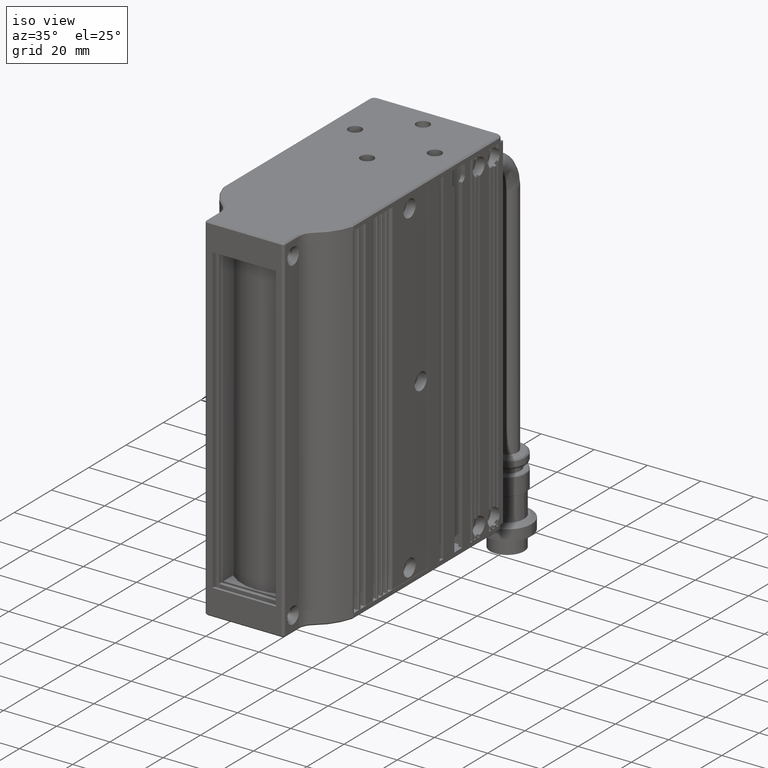
[diagram: clean part render]
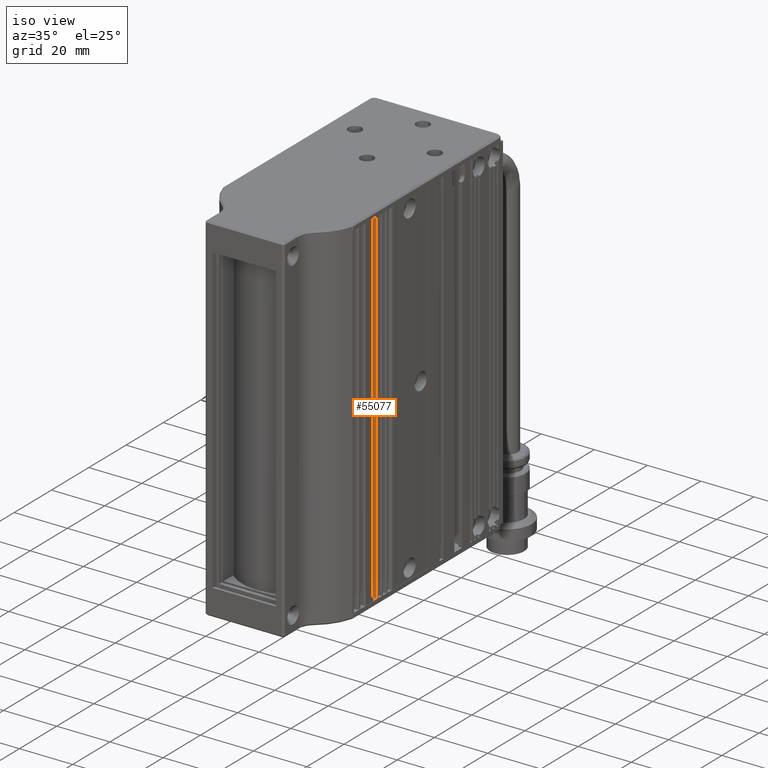
[diagram: same view with one face highlighted and labeled with its STEP entity id]
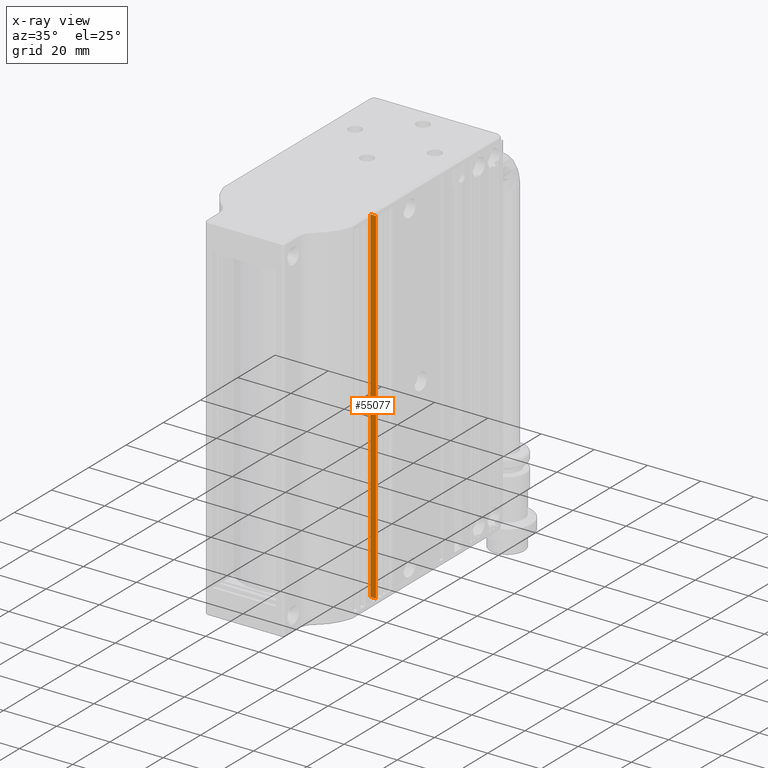
[diagram: x-ray of the same camera — body ghosted, the highlighted face saturated]
A machine part, iso view. The second image highlights one B-rep face of the part: STEP entity #55077.
The next image is the same camera in x-ray: the body ghosted, the highlighted face saturated — about 0% of this face is hidden behind the body in this view.
In plain terms, the highlighted planar face has unit normal (0, 1, -0).
Its self-contained STEP definition (entity closure, byte-faithful):
#56 = ORIENTED_EDGE ( 'NONE', *, *, #65915, .F. ) ;
#3409 = DIRECTION ( 'NONE',  ( 0.0000000000000000000, 1.000000000000000000, -1.665334536937734300E-016 ) ) ;
#3748 = CARTESIAN_POINT ( 'NONE',  ( -13.56201180637544800, -23.49547579693033900, -65.00000000000000000 ) ) ;
#10833 = DIRECTION ( 'NONE',  ( -1.000000000000000000, 0.0000000000000000000, 0.0000000000000000000 ) ) ;
#12434 = ORIENTED_EDGE ( 'NONE', *, *, #51476, .T. ) ;
#12963 = CARTESIAN_POINT ( 'NONE',  ( -15.66201180637662900, -23.49547579693031800, 65.00000000000000000 ) ) ;
#13303 = VECTOR ( 'NONE', #46753, 1000.000000000000000 ) ;
#13603 = CARTESIAN_POINT ( 'NONE',  ( -15.66201180637663300, -23.49547579693034300, -65.00000000000000000 ) ) ;
#15010 = CARTESIAN_POINT ( 'NONE',  ( -13.56201180637544800, -23.49547579693031800, 65.00000000000000000 ) ) ;
#16022 = LINE ( 'NONE', #24510, #21230 ) ;
#16026 = ORIENTED_EDGE ( 'NONE', *, *, #51614, .F. ) ;
#17827 = DIRECTION ( 'NONE',  ( -0.0000000000000000000, 1.665334536937734300E-016, 1.000000000000000000 ) ) ;
#19177 = DIRECTION ( 'NONE',  ( -1.000000000000000000, 0.0000000000000000000, 0.0000000000000000000 ) ) ;
#21230 = VECTOR ( 'NONE', #19177, 1000.000000000000000 ) ;
#23504 = ORIENTED_EDGE ( 'NONE', *, *, #26381, .F. ) ;
#24510 = CARTESIAN_POINT ( 'NONE',  ( -37.66201180637544600, -23.49547579693033900, -65.00000000000000000 ) ) ;
#24610 = CARTESIAN_POINT ( 'NONE',  ( -13.56201180637544800, -23.49547579693031800, 65.00000000000000000 ) ) ;
#26381 = EDGE_CURVE ( 'NONE', #44101, #58281, #65436, .T. ) ;
#31419 = LINE ( 'NONE', #12963, #60190 ) ;
#34020 = EDGE_LOOP ( 'NONE', ( #23504, #12434, #16026, #56 ) ) ;
#41043 = LINE ( 'NONE', #44140, #68898 ) ;
#42219 = CARTESIAN_POINT ( 'NONE',  ( -15.66201180637663300, -23.49547579693032200, 65.00000000000000000 ) ) ;
#44101 = VERTEX_POINT ( 'NONE', #15010 ) ;
#44140 = CARTESIAN_POINT ( 'NONE',  ( -37.66201180637544600, -23.49547579693031800, 65.00000000000000000 ) ) ;
#46753 = DIRECTION ( 'NONE',  ( 0.0000000000000000000, -1.665334536937734300E-016, -1.000000000000000000 ) ) ;
#48524 = PLANE ( 'NONE',  #53360 ) ;
#51476 = EDGE_CURVE ( 'NONE', #44101, #64774, #41043, .T. ) ;
#51614 = EDGE_CURVE ( 'NONE', #52275, #64774, #31419, .T. ) ;
#52275 = VERTEX_POINT ( 'NONE', #13603 ) ;
#53360 = AXIS2_PLACEMENT_3D ( 'NONE', #54363, #3409, #70895 ) ;
#54363 = CARTESIAN_POINT ( 'NONE',  ( -13.16201180637662400, -23.49547579693031800, 65.00000000000000000 ) ) ;
#55077 = ADVANCED_FACE ( 'NONE', ( #72038 ), #48524, .F. ) ;
#58281 = VERTEX_POINT ( 'NONE', #3748 ) ;
#60190 = VECTOR ( 'NONE', #17827, 1000.000000000000000 ) ;
#64774 = VERTEX_POINT ( 'NONE', #42219 ) ;
#65436 = LINE ( 'NONE', #24610, #13303 ) ;
#65915 = EDGE_CURVE ( 'NONE', #58281, #52275, #16022, .T. ) ;
#68898 = VECTOR ( 'NONE', #10833, 1000.000000000000000 ) ;
#70895 = DIRECTION ( 'NONE',  ( 0.0000000000000000000, -1.665334536937734300E-016, -1.000000000000000000 ) ) ;
#72038 = FACE_OUTER_BOUND ( 'NONE', #34020, .T. ) ;